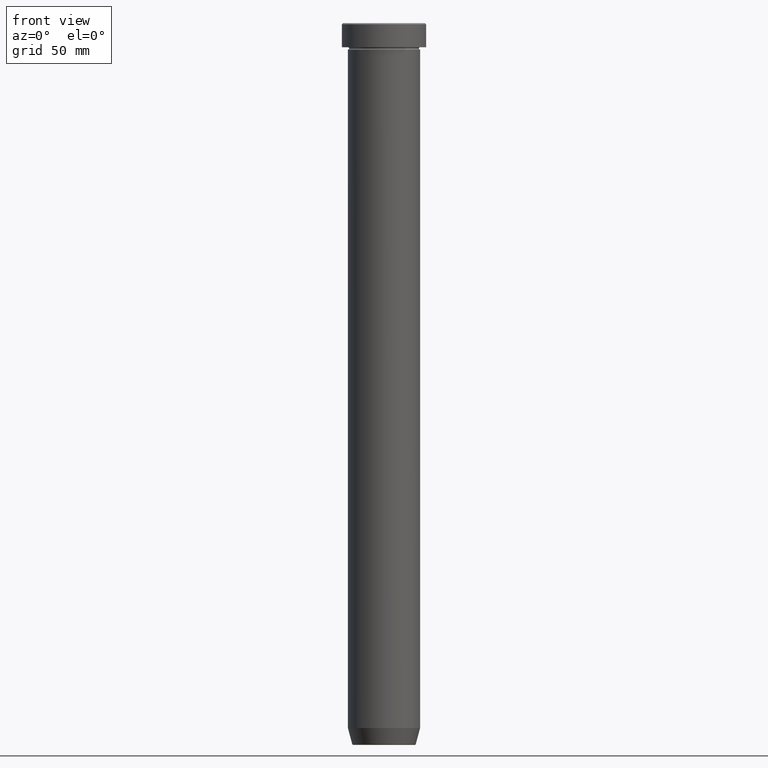
[diagram: clean part render]
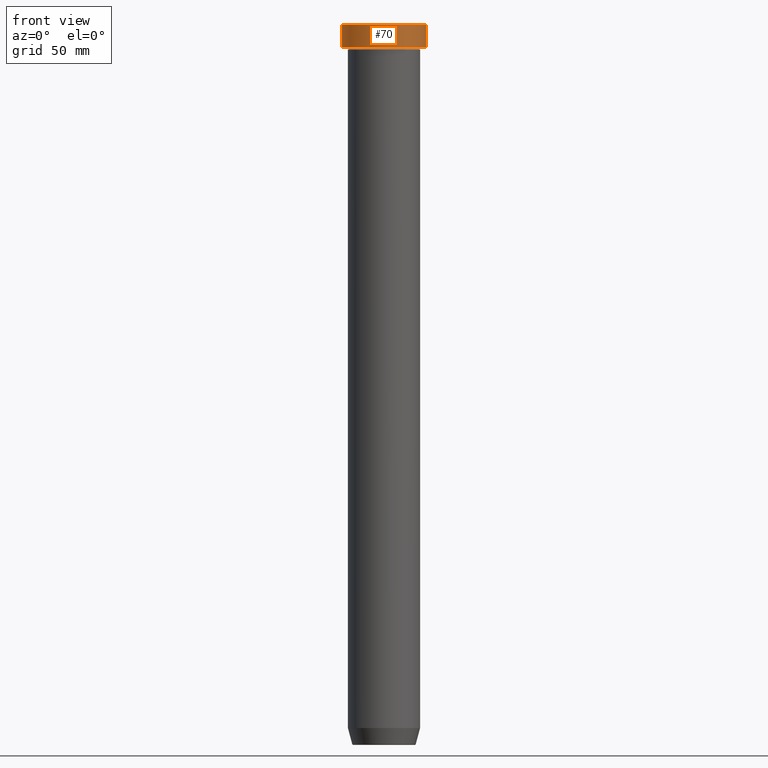
[diagram: same view with one face highlighted and labeled with its STEP entity id]
A machine part, front view. The second image highlights one B-rep face of the part: STEP entity #70.
In plain terms, the highlighted cylindrical surface (partial cylindrical patch) has radius 17.5 mm, axis along (-0, -0, 1).
Its self-contained STEP definition (entity closure, byte-faithful):
#16 = ORIENTED_EDGE ( 'NONE', *, *, #336, .F. ) ;
#17 = VERTEX_POINT ( 'NONE', #203 ) ;
#31 = CIRCLE ( 'NONE', #365, 17.50000000000000000 ) ;
#36 = DIRECTION ( 'NONE',  ( -0.000000000000000000, -0.000000000000000000, 1.000000000000000000 ) ) ;
#69 = EDGE_CURVE ( 'NONE', #108, #297, #540, .T. ) ;
#70 = ADVANCED_FACE ( 'NONE', ( #356 ), #75, .T. ) ;
#71 = CARTESIAN_POINT ( 'NONE',  ( -17.50000000000000000, 2.143131898507868248E-15, -0.5000000000000073275 ) ) ;
#74 = CARTESIAN_POINT ( 'NONE',  ( 0.000000000000000000, 0.000000000000000000, -9.999999999999998224 ) ) ;
#75 = CYLINDRICAL_SURFACE ( 'NONE', #205, 17.50000000000000000 ) ;
#88 = VECTOR ( 'NONE', #36, 1000.000000000000000 ) ;
#91 = AXIS2_PLACEMENT_3D ( 'NONE', #74, #586, #539 ) ;
#94 = ORIENTED_EDGE ( 'NONE', *, *, #69, .T. ) ;
#108 = VERTEX_POINT ( 'NONE', #554 ) ;
#159 = CARTESIAN_POINT ( 'NONE',  ( 0.000000000000000000, 0.000000000000000000, -0.5000000000000073275 ) ) ;
#176 = DIRECTION ( 'NONE',  ( -0.000000000000000000, -0.000000000000000000, 1.000000000000000000 ) ) ;
#203 = CARTESIAN_POINT ( 'NONE',  ( -17.50000000000000000, 2.143131898507868248E-15, -9.999999999999998224 ) ) ;
#205 = AXIS2_PLACEMENT_3D ( 'NONE', #591, #176, #256 ) ;
#223 = CARTESIAN_POINT ( 'NONE',  ( 17.50000000000000000, 0.000000000000000000, -0.5000000000000073275 ) ) ;
#247 = VECTOR ( 'NONE', #465, 1000.000000000000000 ) ;
#256 = DIRECTION ( 'NONE',  ( 1.000000000000000000, 0.000000000000000000, 0.000000000000000000 ) ) ;
#272 = CARTESIAN_POINT ( 'NONE',  ( -17.50000000000000000, 2.143131898507868248E-15, 0.000000000000000000 ) ) ;
#288 = CIRCLE ( 'NONE', #91, 17.50000000000000000 ) ;
#297 = VERTEX_POINT ( 'NONE', #223 ) ;
#304 = DIRECTION ( 'NONE',  ( 1.000000000000000000, 0.000000000000000000, 0.000000000000000000 ) ) ;
#336 = EDGE_CURVE ( 'NONE', #17, #520, #557, .T. ) ;
#356 = FACE_OUTER_BOUND ( 'NONE', #440, .T. ) ;
#365 = AXIS2_PLACEMENT_3D ( 'NONE', #159, #447, #304 ) ;
#421 = EDGE_CURVE ( 'NONE', #297, #520, #31, .T. ) ;
#433 = ORIENTED_EDGE ( 'NONE', *, *, #525, .T. ) ;
#440 = EDGE_LOOP ( 'NONE', ( #16, #433, #94, #466 ) ) ;
#447 = DIRECTION ( 'NONE',  ( 0.000000000000000000, 0.000000000000000000, -1.000000000000000000 ) ) ;
#465 = DIRECTION ( 'NONE',  ( -0.000000000000000000, -0.000000000000000000, 1.000000000000000000 ) ) ;
#466 = ORIENTED_EDGE ( 'NONE', *, *, #421, .T. ) ;
#499 = CARTESIAN_POINT ( 'NONE',  ( 17.50000000000000000, 0.000000000000000000, 0.000000000000000000 ) ) ;
#520 = VERTEX_POINT ( 'NONE', #71 ) ;
#525 = EDGE_CURVE ( 'NONE', #17, #108, #288, .T. ) ;
#539 = DIRECTION ( 'NONE',  ( 1.000000000000000000, 0.000000000000000000, 0.000000000000000000 ) ) ;
#540 = LINE ( 'NONE', #499, #88 ) ;
#554 = CARTESIAN_POINT ( 'NONE',  ( 17.50000000000000000, 0.000000000000000000, -9.999999999999998224 ) ) ;
#557 = LINE ( 'NONE', #272, #247 ) ;
#586 = DIRECTION ( 'NONE',  ( -0.000000000000000000, -0.000000000000000000, 1.000000000000000000 ) ) ;
#591 = CARTESIAN_POINT ( 'NONE',  ( 0.000000000000000000, 0.000000000000000000, 0.000000000000000000 ) ) ;